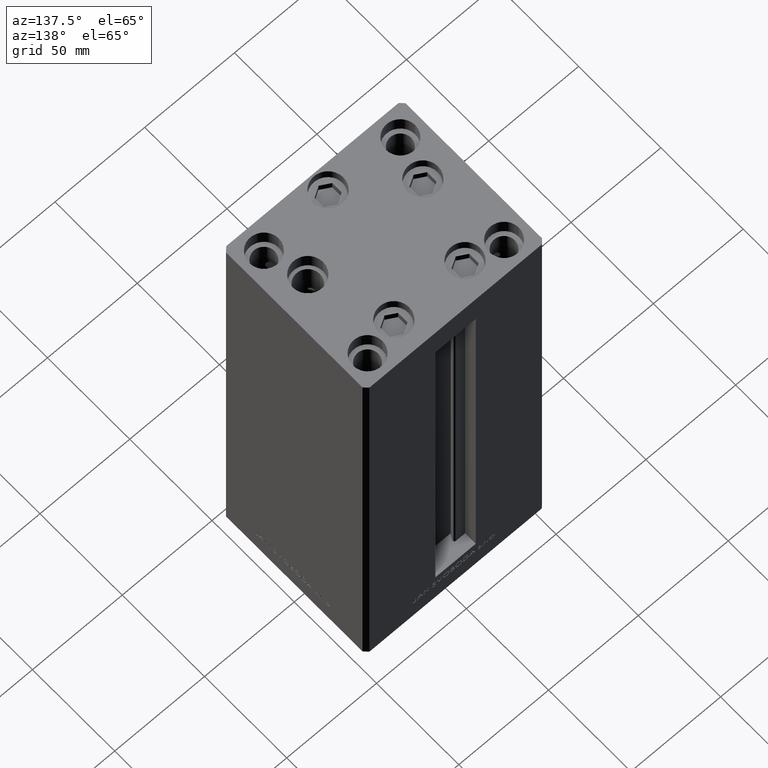
[diagram: clean part render]
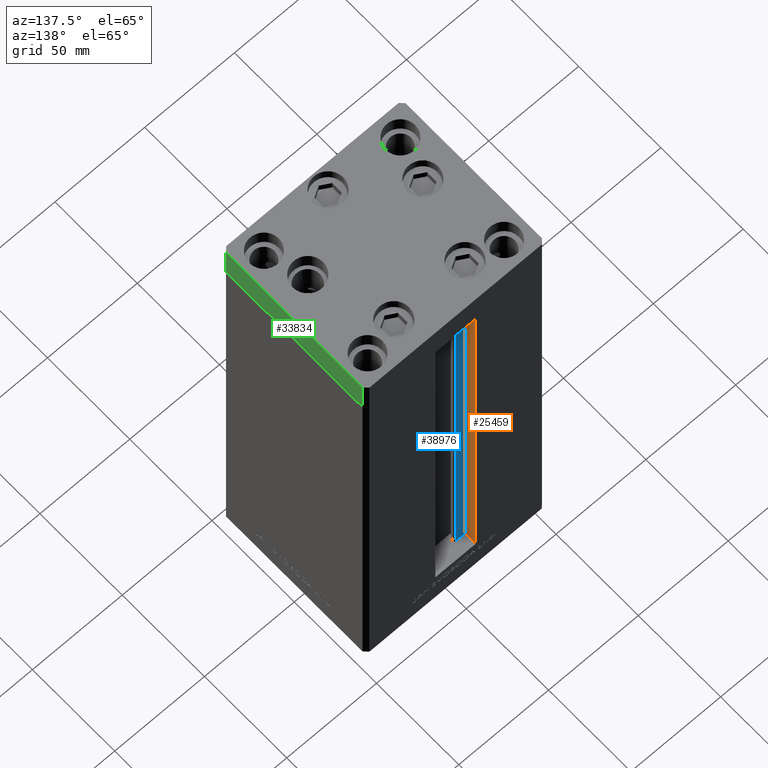
[diagram: same view with three faces highlighted in distinct colors, each labeled with its STEP entity id]
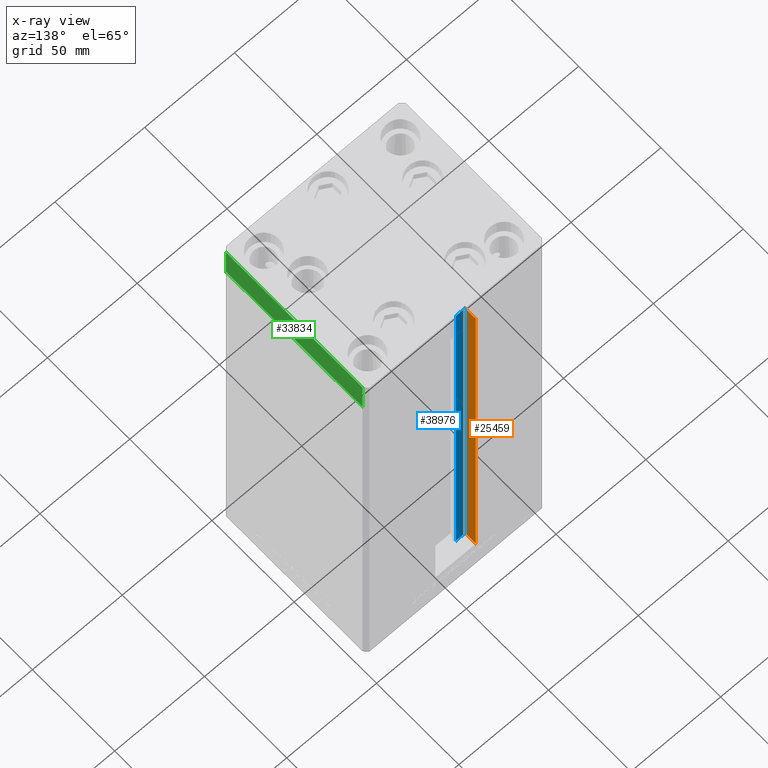
[diagram: x-ray of the same camera — body ghosted, the three highlighted faces saturated]
A machine part, auxiliary view with three faces highlighted in distinct colors.
The next image is the same camera in x-ray (body ghosted, the three faces saturated) — at least one of them is partly hidden behind the body in this view.
Their STEP definitions:

[orange] entity #25459 — the highlighted planar face has unit normal (-1, 0, 0).
#834 = EDGE_CURVE ( 'NONE', #13809, #26265, #42032, .T. ) ;
#969 = ORIENTED_EDGE ( 'NONE', *, *, #32629, .F. ) ;
#2038 = EDGE_LOOP ( 'NONE', ( #19161, #16048, #13532, #969 ) ) ;
#3508 = DIRECTION ( 'NONE',  ( -0.000000000000000000, -0.000000000000000000, 1.000000000000000000 ) ) ;
#5778 = CARTESIAN_POINT ( 'NONE',  ( -11.24999999999999822, 0.000000000000000000, 218.5000000000000000 ) ) ;
#6069 = CARTESIAN_POINT ( 'NONE',  ( -11.24999999999999822, 43.50000000000000000, 0.000000000000000000 ) ) ;
#9333 = DIRECTION ( 'NONE',  ( 0.000000000000000000, 1.000000000000000000, 0.000000000000000000 ) ) ;
#10161 = CARTESIAN_POINT ( 'NONE',  ( -11.24999999999999822, 36.99999999999999289, 0.000000000000000000 ) ) ;
#13532 = ORIENTED_EDGE ( 'NONE', *, *, #16963, .T. ) ;
#13635 = LINE ( 'NONE', #5778, #19691 ) ;
#13809 = VERTEX_POINT ( 'NONE', #10161 ) ;
#14267 = DIRECTION ( 'NONE',  ( 0.000000000000000000, 0.000000000000000000, 1.000000000000000000 ) ) ;
#15564 = VECTOR ( 'NONE', #33929, 1000.000000000000000 ) ;
#16048 = ORIENTED_EDGE ( 'NONE', *, *, #23560, .F. ) ;
#16670 = LINE ( 'NONE', #32378, #49297 ) ;
#16963 = EDGE_CURVE ( 'NONE', #48808, #24588, #30604, .T. ) ;
#19161 = ORIENTED_EDGE ( 'NONE', *, *, #834, .F. ) ;
#19691 = VECTOR ( 'NONE', #9333, 1000.000000000000000 ) ;
#22354 = PLANE ( 'NONE',  #30682 ) ;
#23560 = EDGE_CURVE ( 'NONE', #48808, #13809, #16670, .T. ) ;
#24588 = VERTEX_POINT ( 'NONE', #34621 ) ;
#25415 = CARTESIAN_POINT ( 'NONE',  ( -11.24999999999999822, 36.99999999999999289, 218.5000000000000000 ) ) ;
#25459 = ADVANCED_FACE ( 'NONE', ( #49463 ), #22354, .F. ) ;
#26265 = VERTEX_POINT ( 'NONE', #25415 ) ;
#30604 = LINE ( 'NONE', #43271, #41099 ) ;
#30682 = AXIS2_PLACEMENT_3D ( 'NONE', #45425, #33021, #14267 ) ;
#32378 = CARTESIAN_POINT ( 'NONE',  ( -11.24999999999999822, 36.99999999999999289, 0.000000000000000000 ) ) ;
#32629 = EDGE_CURVE ( 'NONE', #26265, #24588, #13635, .T. ) ;
#33021 = DIRECTION ( 'NONE',  ( -1.000000000000000000, 0.000000000000000000, 0.000000000000000000 ) ) ;
#33929 = DIRECTION ( 'NONE',  ( -0.000000000000000000, -0.000000000000000000, 1.000000000000000000 ) ) ;
#34621 = CARTESIAN_POINT ( 'NONE',  ( -11.24999999999999822, 43.50000000000000000, 218.5000000000000000 ) ) ;
#41099 = VECTOR ( 'NONE', #3508, 1000.000000000000000 ) ;
#42032 = LINE ( 'NONE', #44838, #15564 ) ;
#43271 = CARTESIAN_POINT ( 'NONE',  ( -11.24999999999999822, 43.50000000000000000, 0.000000000000000000 ) ) ;
#44838 = CARTESIAN_POINT ( 'NONE',  ( -11.24999999999999822, 36.99999999999999289, 0.000000000000000000 ) ) ;
#45425 = CARTESIAN_POINT ( 'NONE',  ( -11.24999999999999822, 36.99999999999999289, 0.000000000000000000 ) ) ;
#47070 = DIRECTION ( 'NONE',  ( -0.000000000000000000, -1.000000000000000000, -0.000000000000000000 ) ) ;
#48808 = VERTEX_POINT ( 'NONE', #6069 ) ;
#49297 = VECTOR ( 'NONE', #47070, 1000.000000000000000 ) ;
#49463 = FACE_OUTER_BOUND ( 'NONE', #2038, .T. ) ;

[blue] entity #38976 — the highlighted planar face has unit normal (0, -1, 0).
#834 = EDGE_CURVE ( 'NONE', #13809, #26265, #42032, .T. ) ;
#5704 = EDGE_LOOP ( 'NONE', ( #24994, #25727, #18526, #33986 ) ) ;
#6079 = AXIS2_PLACEMENT_3D ( 'NONE', #30233, #15291, #49742 ) ;
#9362 = DIRECTION ( 'NONE',  ( -0.000000000000000000, -0.000000000000000000, 1.000000000000000000 ) ) ;
#10161 = CARTESIAN_POINT ( 'NONE',  ( -11.24999999999999822, 36.99999999999999289, 0.000000000000000000 ) ) ;
#10488 = CARTESIAN_POINT ( 'NONE',  ( -6.183333333333997928, 36.99999999999999289, 0.000000000000000000 ) ) ;
#11238 = FACE_OUTER_BOUND ( 'NONE', #5704, .T. ) ;
#13809 = VERTEX_POINT ( 'NONE', #10161 ) ;
#14153 = LINE ( 'NONE', #44572, #30182 ) ;
#14997 = DIRECTION ( 'NONE',  ( -1.000000000000000000, 0.000000000000000000, 0.000000000000000000 ) ) ;
#15291 = DIRECTION ( 'NONE',  ( 0.000000000000000000, -1.000000000000000000, -0.000000000000000000 ) ) ;
#15564 = VECTOR ( 'NONE', #33929, 1000.000000000000000 ) ;
#17319 = EDGE_CURVE ( 'NONE', #31708, #26265, #34006, .T. ) ;
#18526 = ORIENTED_EDGE ( 'NONE', *, *, #834, .T. ) ;
#21620 = DIRECTION ( 'NONE',  ( 1.000000000000000000, -0.000000000000000000, -0.000000000000000000 ) ) ;
#24994 = ORIENTED_EDGE ( 'NONE', *, *, #34071, .F. ) ;
#25415 = CARTESIAN_POINT ( 'NONE',  ( -11.24999999999999822, 36.99999999999999289, 218.5000000000000000 ) ) ;
#25727 = ORIENTED_EDGE ( 'NONE', *, *, #46544, .F. ) ;
#26265 = VERTEX_POINT ( 'NONE', #25415 ) ;
#30182 = VECTOR ( 'NONE', #9362, 1000.000000000000000 ) ;
#30233 = CARTESIAN_POINT ( 'NONE',  ( -6.183333333333997928, 36.99999999999999289, 0.000000000000000000 ) ) ;
#30981 = CARTESIAN_POINT ( 'NONE',  ( -6.183333333333997928, 36.99999999999999289, 0.000000000000000000 ) ) ;
#31708 = VERTEX_POINT ( 'NONE', #33356 ) ;
#32182 = VECTOR ( 'NONE', #14997, 1000.000000000000000 ) ;
#33356 = CARTESIAN_POINT ( 'NONE',  ( -6.183333333333997928, 36.99999999999999289, 218.5000000000000000 ) ) ;
#33929 = DIRECTION ( 'NONE',  ( -0.000000000000000000, -0.000000000000000000, 1.000000000000000000 ) ) ;
#33986 = ORIENTED_EDGE ( 'NONE', *, *, #17319, .F. ) ;
#34006 = LINE ( 'NONE', #41620, #32182 ) ;
#34071 = EDGE_CURVE ( 'NONE', #39925, #31708, #14153, .T. ) ;
#38976 = ADVANCED_FACE ( 'NONE', ( #11238 ), #45943, .F. ) ;
#39925 = VERTEX_POINT ( 'NONE', #30981 ) ;
#41620 = CARTESIAN_POINT ( 'NONE',  ( 0.000000000000000000, 36.99999999999999289, 218.5000000000000000 ) ) ;
#42032 = LINE ( 'NONE', #44838, #15564 ) ;
#44572 = CARTESIAN_POINT ( 'NONE',  ( -6.183333333333997928, 36.99999999999999289, 0.000000000000000000 ) ) ;
#44838 = CARTESIAN_POINT ( 'NONE',  ( -11.24999999999999822, 36.99999999999999289, 0.000000000000000000 ) ) ;
#44936 = LINE ( 'NONE', #10488, #45959 ) ;
#45943 = PLANE ( 'NONE',  #6079 ) ;
#45959 = VECTOR ( 'NONE', #21620, 1000.000000000000000 ) ;
#46544 = EDGE_CURVE ( 'NONE', #13809, #39925, #44936, .T. ) ;
#49742 = DIRECTION ( 'NONE',  ( 0.000000000000000000, 0.000000000000000000, -1.000000000000000000 ) ) ;

[green] entity #33834 — the highlighted planar face has unit normal (1, 0, 0).
#1160 = DIRECTION ( 'NONE',  ( -1.003213576468515193E-15, 1.000000000000000000, 0.000000000000000000 ) ) ;
#1808 = DIRECTION ( 'NONE',  ( -1.003213576468515193E-15, 1.000000000000000000, 0.000000000000000000 ) ) ;
#3493 = VERTEX_POINT ( 'NONE', #44772 ) ;
#4778 = CARTESIAN_POINT ( 'NONE',  ( 50.00000000000000000, -41.49999999999999289, -19.00000000000000000 ) ) ;
#7943 = ORIENTED_EDGE ( 'NONE', *, *, #50068, .F. ) ;
#8356 = ORIENTED_EDGE ( 'NONE', *, *, #48166, .T. ) ;
#10429 = PLANE ( 'NONE',  #44857 ) ;
#10801 = DIRECTION ( 'NONE',  ( 0.000000000000000000, 0.000000000000000000, 1.000000000000000000 ) ) ;
#12661 = VECTOR ( 'NONE', #1808, 1000.000000000000000 ) ;
#13734 = EDGE_CURVE ( 'NONE', #22796, #48964, #40317, .T. ) ;
#15091 = CARTESIAN_POINT ( 'NONE',  ( 49.99999999999992184, 41.49999999999998579, -19.00000000000000000 ) ) ;
#16943 = LINE ( 'NONE', #4778, #19222 ) ;
#18261 = FACE_OUTER_BOUND ( 'NONE', #27948, .T. ) ;
#19222 = VECTOR ( 'NONE', #27813, 1000.000000000000000 ) ;
#22725 = VERTEX_POINT ( 'NONE', #26306 ) ;
#22753 = CARTESIAN_POINT ( 'NONE',  ( 50.00000000000000000, -41.49999999999999289, 0.000000000000000000 ) ) ;
#22796 = VERTEX_POINT ( 'NONE', #22753 ) ;
#25113 = DIRECTION ( 'NONE',  ( 1.000000000000000000, 1.003213576468515193E-15, -0.000000000000000000 ) ) ;
#25609 = DIRECTION ( 'NONE',  ( -1.003213576468515193E-15, 1.000000000000000000, 0.000000000000000000 ) ) ;
#25739 = LINE ( 'NONE', #15091, #31406 ) ;
#26306 = CARTESIAN_POINT ( 'NONE',  ( 49.99999999999992184, 41.49999999999998579, -19.00000000000000000 ) ) ;
#27813 = DIRECTION ( 'NONE',  ( 0.000000000000000000, 0.000000000000000000, 1.000000000000000000 ) ) ;
#27948 = EDGE_LOOP ( 'NONE', ( #41942, #7943, #35754, #8356 ) ) ;
#27990 = LINE ( 'NONE', #35854, #45063 ) ;
#31406 = VECTOR ( 'NONE', #10801, 1000.000000000000000 ) ;
#33834 = ADVANCED_FACE ( 'NONE', ( #18261 ), #10429, .T. ) ;
#35754 = ORIENTED_EDGE ( 'NONE', *, *, #42816, .T. ) ;
#35854 = CARTESIAN_POINT ( 'NONE',  ( 50.00000000000000000, -41.49999999999999289, -19.00000000000000000 ) ) ;
#36512 = CARTESIAN_POINT ( 'NONE',  ( 50.00000000000000000, -41.49999999999999289, 0.000000000000000000 ) ) ;
#38467 = CARTESIAN_POINT ( 'NONE',  ( 49.99999999999992184, 41.49999999999998579, 0.000000000000000000 ) ) ;
#40317 = LINE ( 'NONE', #36512, #12661 ) ;
#41942 = ORIENTED_EDGE ( 'NONE', *, *, #13734, .F. ) ;
#42816 = EDGE_CURVE ( 'NONE', #3493, #22725, #27990, .T. ) ;
#44772 = CARTESIAN_POINT ( 'NONE',  ( 50.00000000000000000, -41.49999999999999289, -19.00000000000000000 ) ) ;
#44857 = AXIS2_PLACEMENT_3D ( 'NONE', #48184, #25113, #25609 ) ;
#45063 = VECTOR ( 'NONE', #1160, 1000.000000000000000 ) ;
#48166 = EDGE_CURVE ( 'NONE', #22725, #48964, #25739, .T. ) ;
#48184 = CARTESIAN_POINT ( 'NONE',  ( 50.00000000000000000, -41.49999999999999289, -19.00000000000000000 ) ) ;
#48964 = VERTEX_POINT ( 'NONE', #38467 ) ;
#50068 = EDGE_CURVE ( 'NONE', #3493, #22796, #16943, .T. ) ;